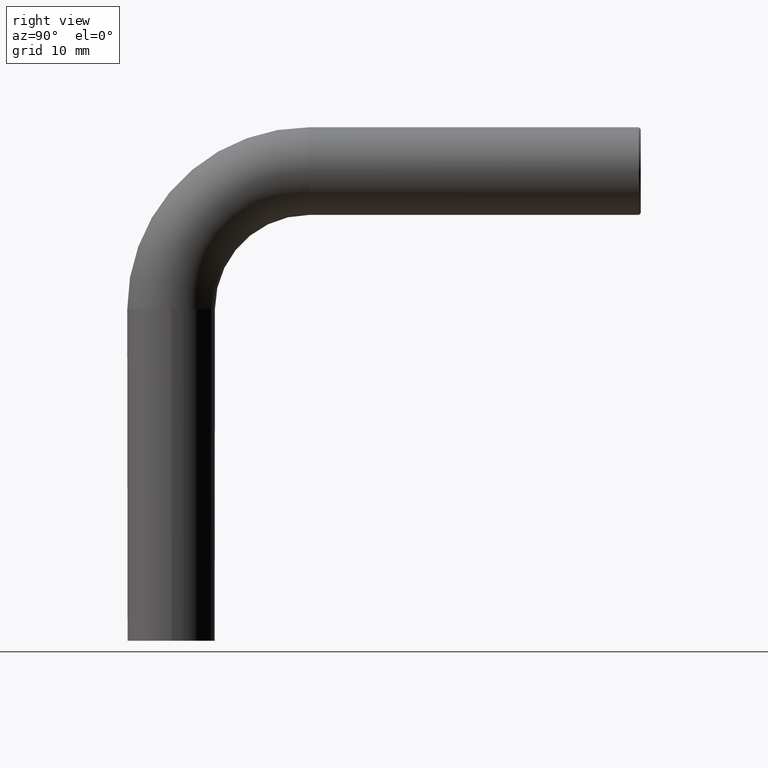
[diagram: clean part render]
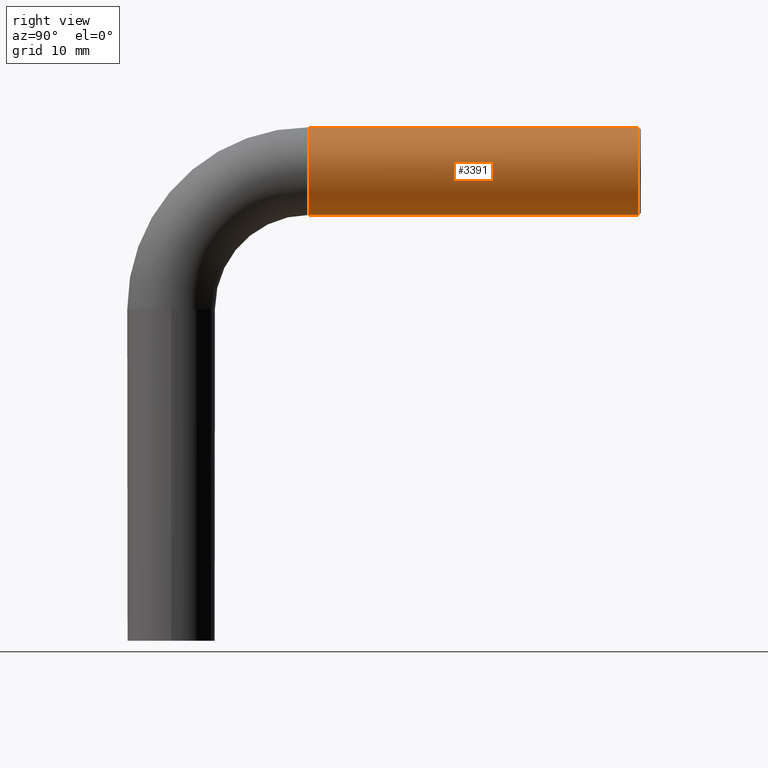
[diagram: same view with one face highlighted and labeled with its STEP entity id]
A machine part, right view. The second image highlights one B-rep face of the part: STEP entity #3391.
In plain terms, the highlighted cylindrical surface (partial cylindrical patch) has radius 7 mm, axis along (0, 1, 0).
Its self-contained STEP definition (entity closure, byte-faithful):
#172 = ORIENTED_EDGE ( 'NONE', *, *, #5220, .T. ) ;
#527 = CARTESIAN_POINT ( 'NONE',  ( 0.000000000000000000, 22.00000000000016342, 82.00000000000000000 ) ) ;
#943 = VERTEX_POINT ( 'NONE', #8841 ) ;
#1006 = AXIS2_PLACEMENT_3D ( 'NONE', #11991, #4328, #12068 ) ;
#1449 = VERTEX_POINT ( 'NONE', #3957 ) ;
#1532 = CARTESIAN_POINT ( 'NONE',  ( 0.000000000000000000, 22.00000000000016342, 75.00000000000000000 ) ) ;
#1981 = VERTEX_POINT ( 'NONE', #7174 ) ;
#2035 = AXIS2_PLACEMENT_3D ( 'NONE', #1532, #3514, #10080 ) ;
#2526 = ORIENTED_EDGE ( 'NONE', *, *, #11341, .F. ) ;
#2760 = DIRECTION ( 'NONE',  ( 0.000000000000000000, 0.000000000000000000, 1.000000000000000000 ) ) ;
#2893 = EDGE_CURVE ( 'NONE', #1981, #943, #11556, .T. ) ;
#3048 = ORIENTED_EDGE ( 'NONE', *, *, #3623, .T. ) ;
#3205 = CIRCLE ( 'NONE', #4922, 7.000000000000006217 ) ;
#3391 = ADVANCED_FACE ( 'NONE', ( #4883 ), #3663, .T. ) ;
#3508 = DIRECTION ( 'NONE',  ( 0.000000000000000000, 1.000000000000000000, 0.000000000000000000 ) ) ;
#3514 = DIRECTION ( 'NONE',  ( 0.000000000000000000, 1.000000000000000000, -1.459371158509469876E-14 ) ) ;
#3623 = EDGE_CURVE ( 'NONE', #3762, #1981, #5470, .T. ) ;
#3663 = CYLINDRICAL_SURFACE ( 'NONE', #1006, 7.000000000000006217 ) ;
#3762 = VERTEX_POINT ( 'NONE', #9191 ) ;
#3957 = CARTESIAN_POINT ( 'NONE',  ( 0.000000000000000000, 74.70000000000001705, 82.00000000000000000 ) ) ;
#4328 = DIRECTION ( 'NONE',  ( 0.000000000000000000, 1.000000000000000000, 0.000000000000000000 ) ) ;
#4883 = FACE_OUTER_BOUND ( 'NONE', #8302, .T. ) ;
#4922 = AXIS2_PLACEMENT_3D ( 'NONE', #12298, #7550, #2760 ) ;
#5182 = VECTOR ( 'NONE', #12055, 1000.000000000000000 ) ;
#5220 = EDGE_CURVE ( 'NONE', #943, #1449, #3205, .T. ) ;
#5470 = CIRCLE ( 'NONE', #2035, 7.000000000000000888 ) ;
#7174 = CARTESIAN_POINT ( 'NONE',  ( 8.572527594031467273E-16, 22.00000000000006040, 67.99999999999998579 ) ) ;
#7472 = LINE ( 'NONE', #527, #11022 ) ;
#7550 = DIRECTION ( 'NONE',  ( 0.000000000000000000, -1.000000000000000000, 0.000000000000000000 ) ) ;
#8302 = EDGE_LOOP ( 'NONE', ( #3048, #8673, #172, #2526 ) ) ;
#8433 = CARTESIAN_POINT ( 'NONE',  ( 8.572527594031474176E-16, 22.00000000000016342, 67.99999999999998579 ) ) ;
#8673 = ORIENTED_EDGE ( 'NONE', *, *, #2893, .T. ) ;
#8841 = CARTESIAN_POINT ( 'NONE',  ( 8.572527594031467273E-16, 74.70000000000001705, 67.99999999999998579 ) ) ;
#9191 = CARTESIAN_POINT ( 'NONE',  ( 0.000000000000000000, 22.00000000000026290, 82.00000000000000000 ) ) ;
#10080 = DIRECTION ( 'NONE',  ( 1.000000000000000000, 0.000000000000000000, 0.000000000000000000 ) ) ;
#11022 = VECTOR ( 'NONE', #3508, 1000.000000000000000 ) ;
#11341 = EDGE_CURVE ( 'NONE', #3762, #1449, #7472, .T. ) ;
#11556 = LINE ( 'NONE', #8433, #5182 ) ;
#11991 = CARTESIAN_POINT ( 'NONE',  ( 0.000000000000000000, 22.00000000000016342, 75.00000000000000000 ) ) ;
#12055 = DIRECTION ( 'NONE',  ( 0.000000000000000000, 1.000000000000000000, 0.000000000000000000 ) ) ;
#12068 = DIRECTION ( 'NONE',  ( 0.000000000000000000, 0.000000000000000000, 1.000000000000000000 ) ) ;
#12298 = CARTESIAN_POINT ( 'NONE',  ( 0.000000000000000000, 74.70000000000001705, 75.00000000000000000 ) ) ;